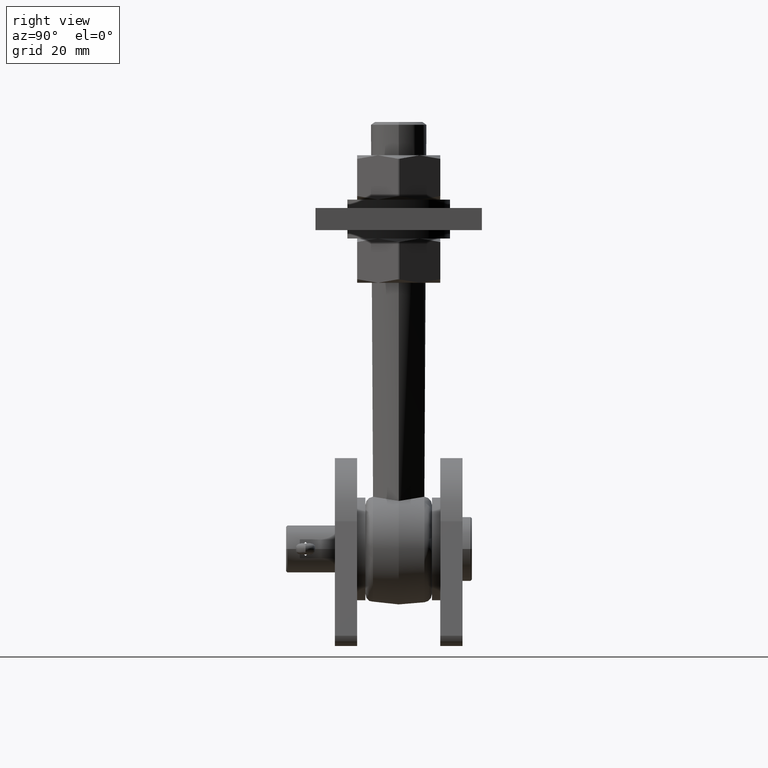
[diagram: clean part render]
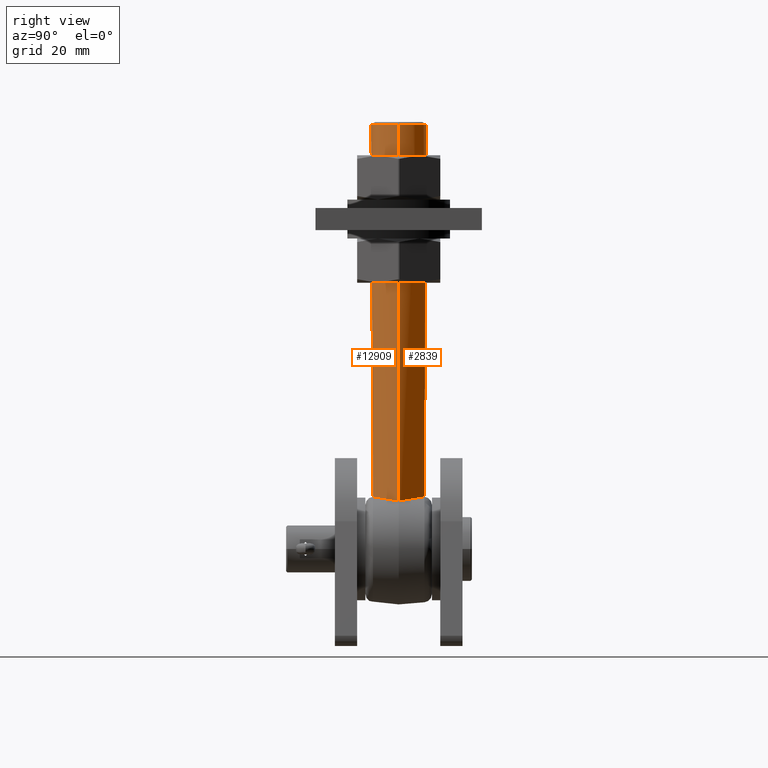
[diagram: same view with one multi-face feature highlighted, each face labeled with its STEP entity id]
A machine part, right view. The highlighted faces form ONE feature: a constant-radius fillet chain: 2 tangent blend faces with common blend radius 10 mm. The faces share edges in the B-rep.
Their STEP definitions:
[1] entity #12909 (Cylinder):
#64 = CARTESIAN_POINT ( 'NONE',  ( 9.700726272622443247, -2.478403115903502929, 17.25393994698888278 ) ) ;
#154 = B_SPLINE_CURVE_WITH_KNOTS ( 'NONE', 3,
 ( #6675, #6741, #12072, #16276, #8184, #9469, #6560, #3910, #1194, #8122, #2683, #5321, #17611, #64, #16210, #7962, #8065, #16102 ),
 .UNSPECIFIED., .F., .F.,
 ( 4, 2, 2, 2, 2, 2, 2, 2, 4 ),
 ( 0.01968676549610584928, 0.02117278003553451846, 0.02191578730524885651, 0.02265879457496319457, 0.02563082365382054681, 0.02711683819324921946, 0.02860285273267789558, 0.03008886727210657169, 0.03157488181153524781 ),
 .UNSPECIFIED. ) ;
#275 = ORIENTED_EDGE ( 'NONE', *, *, #14549, .T. ) ;
#296 = EDGE_CURVE ( 'NONE', #1716, #11074, #5119, .T. ) ;
#801 = CARTESIAN_POINT ( 'NONE',  ( 3.502622918625013071, -9.372099181886746067, 18.89955422112597816 ) ) ;
#916 = CARTESIAN_POINT ( 'NONE',  ( -4.692284897813942202, -8.844184067530791893, 18.68765766559088348 ) ) ;
#919 = CARTESIAN_POINT ( 'NONE',  ( -10.00000000000000000, 1.224646799147353059E-15, -20.00199999999999179 ) ) ;
#1128 = CARTESIAN_POINT ( 'NONE',  ( -7.045800562530937228, -7.112870045709465572, 18.08634345397620535 ) ) ;
#1194 = CARTESIAN_POINT ( 'NONE',  ( 7.729806215744074116, -6.420573703480572547, 17.87370296023746263 ) ) ;
#1308 = CARTESIAN_POINT ( 'NONE',  ( 10.00000000000000000, 0.000000000000000000, 153.0000000000000284 ) ) ;
#1350 = EDGE_CURVE ( 'NONE', #14545, #11074, #7003, .T. ) ;
#1359 = EDGE_LOOP ( 'NONE', ( #6847, #14521, #7697, #275, #9425, #11678 ) ) ;
#1574 = CARTESIAN_POINT ( 'NONE',  ( -10.00000000000000000, 1.224646799147353059E-15, 153.0000000000000284 ) ) ;
#1716 = VERTEX_POINT ( 'NONE', #14229 ) ;
#1943 = CARTESIAN_POINT ( 'NONE',  ( 0.6525917145658880480, -9.984010149917958543, 19.15964042647132359 ) ) ;
#2065 = CARTESIAN_POINT ( 'NONE',  ( 1.301650642571815952, -9.920284281424462947, 19.13183247685588739 ) ) ;
#2195 = CARTESIAN_POINT ( 'NONE',  ( 10.00000000000000000, 2.075554018110587845E-15, 17.32050807568877460 ) ) ;
#2232 = DIRECTION ( 'NONE',  ( 0.000000000000000000, 0.000000000000000000, 1.000000000000000000 ) ) ;
#2683 = CARTESIAN_POINT ( 'NONE',  ( 8.803824609794070000, -4.767868367503244720, 17.51587346503771059 ) ) ;
#3449 = CARTESIAN_POINT ( 'NONE',  ( 2.572198770621717312, -9.668980321438491288, 19.02370105461100991 ) ) ;
#3507 = CYLINDRICAL_SURFACE ( 'NONE', #13330, 10.00000000000000000 ) ;
#3612 = CARTESIAN_POINT ( 'NONE',  ( -10.00000000000000000, 1.734723475976807094E-15, 17.32050807568877104 ) ) ;
#3896 = EDGE_CURVE ( 'NONE', #1716, #12904, #5313, .T. ) ;
#3910 = CARTESIAN_POINT ( 'NONE',  ( 7.075240492070314247, -7.134293102675835385, 18.08670936083950664 ) ) ;
#4974 = DIRECTION ( 'NONE',  ( 0.000000000000000000, 0.000000000000000000, -1.000000000000000000 ) ) ;
#5119 = LINE ( 'NONE', #919, #14058 ) ;
#5141 = CARTESIAN_POINT ( 'NONE',  ( -6.692399033463063418, -7.446575945183504075, 18.19146059561633777 ) ) ;
#5205 = CARTESIAN_POINT ( 'NONE',  ( -8.835764017973177786, -4.785742041345328879, 17.50630661752977346 ) ) ;
#5238 = CARTESIAN_POINT ( 'NONE',  ( 3.801772628969415813, -9.249136439561223000, 18.84967222973677536 ) ) ;
#5313 = B_SPLINE_CURVE_WITH_KNOTS ( 'NONE', 3,
 ( #3612, #14620, #6437, #14551, #5205, #6377, #7777, #1128, #5141, #17275, #15969, #9214, #6551, #916, #14669, #10407 ),
 .UNSPECIFIED., .F., .F.,
 ( 4, 2, 2, 2, 2, 2, 2, 4 ),
 ( 1.978696559023179177E-07, 0.002974008642467257119, 0.005947819415278611868, 0.007434724801684289459, 0.008921630188089965316, 0.009665082881292802811, 0.01040853557449564031, 0.01189544096090132050 ),
 .UNSPECIFIED. ) ;
#5321 = CARTESIAN_POINT ( 'NONE',  ( 9.227620872408923702, -3.884701991779671904, 17.37972913711769252 ) ) ;
#5714 = EDGE_CURVE ( 'NONE', #12904, #13334, #16374, .T. ) ;
#5993 = AXIS2_PLACEMENT_3D ( 'NONE', #10526, #4974, #14494 ) ;
#6035 = CARTESIAN_POINT ( 'NONE',  ( -3.504096372433012085, -9.371493532224862477, 18.89930852872641154 ) ) ;
#6098 = CARTESIAN_POINT ( 'NONE',  ( -3.197067218626133300, -9.480775712499411867, 18.94463972757847614 ) ) ;
#6377 = CARTESIAN_POINT ( 'NONE',  ( -8.006259533125513528, -6.011931591022930732, 17.78186608727027362 ) ) ;
#6424 = DIRECTION ( 'NONE',  ( 0.000000000000000000, 0.000000000000000000, 1.000000000000000000 ) ) ;
#6437 = CARTESIAN_POINT ( 'NONE',  ( -9.852736078693592248, -1.982192769247932196, 17.21712183372639515 ) ) ;
#6488 = CARTESIAN_POINT ( 'NONE',  ( -3.801772628969475765, -9.249136439561192802, 18.84967222973677536 ) ) ;
#6551 = CARTESIAN_POINT ( 'NONE',  ( -5.320119621291354406, -8.470868288481721464, 18.54735235998217036 ) ) ;
#6560 = CARTESIAN_POINT ( 'NONE',  ( 6.127184449269864608, -7.906796671572849711, 18.34595992967986078 ) ) ;
#6675 = CARTESIAN_POINT ( 'NONE',  ( 3.801772628969415813, -9.249136439561223000, 18.84967222973677536 ) ) ;
#6741 = CARTESIAN_POINT ( 'NONE',  ( 4.258219608713637250, -9.061518098594270043, 18.77356156164681877 ) ) ;
#6847 = ORIENTED_EDGE ( 'NONE', *, *, #296, .F. ) ;
#7003 = CIRCLE ( 'NONE', #5993, 10.00000000000000000 ) ;
#7371 = CARTESIAN_POINT ( 'NONE',  ( -1.305637091835909924, -9.935490679198418107, 19.13813554953748763 ) ) ;
#7697 = ORIENTED_EDGE ( 'NONE', *, *, #5714, .T. ) ;
#7777 = CARTESIAN_POINT ( 'NONE',  ( -7.702376216122692298, -6.396063357989797638, 17.88168437975857472 ) ) ;
#7962 = CARTESIAN_POINT ( 'NONE',  ( 9.962557638154743600, -0.9981657043231834114, 17.24618839359191824 ) ) ;
#8065 = CARTESIAN_POINT ( 'NONE',  ( 10.00000000000000355, -0.5010202651647159833, 17.27229737819505573 ) ) ;
#8122 = CARTESIAN_POINT ( 'NONE',  ( 8.559159591582949034, -5.194632305515880510, 17.59819410724466948 ) ) ;
#8173 = CARTESIAN_POINT ( 'NONE',  ( 3.801772628969415813, -9.249136439561223000, 18.84967222973677536 ) ) ;
#8184 = CARTESIAN_POINT ( 'NONE',  ( 5.529375679488065742, -8.335819684704102173, 18.49770452898005857 ) ) ;
#8863 = CARTESIAN_POINT ( 'NONE',  ( 0.3224584886936545658, -10.00017178786474403, 19.16674197945221181 ) ) ;
#9214 = CARTESIAN_POINT ( 'NONE',  ( -5.525007713522617436, -8.338710801018329732, 18.49875751392745471 ) ) ;
#9265 = DIRECTION ( 'NONE',  ( 1.000000000000000000, 0.000000000000000000, 0.000000000000000000 ) ) ;
#9425 = ORIENTED_EDGE ( 'NONE', *, *, #14249, .T. ) ;
#9469 = CARTESIAN_POINT ( 'NONE',  ( 5.930492218390911674, -8.055380020111982731, 18.39758699810101561 ) ) ;
#9894 = DIRECTION ( 'NONE',  ( 0.000000000000000000, 0.000000000000000000, 1.000000000000000000 ) ) ;
#10002 = LINE ( 'NONE', #15265, #16371 ) ;
#10229 = CARTESIAN_POINT ( 'NONE',  ( -2.257753447911333478, -9.747164468780066926, 19.05710368172337610 ) ) ;
#10407 = CARTESIAN_POINT ( 'NONE',  ( -3.801772628969475765, -9.249136439561192802, 18.84967222973677536 ) ) ;
#10526 = CARTESIAN_POINT ( 'NONE',  ( 0.000000000000000000, 0.000000000000000000, 153.0000000000000284 ) ) ;
#11074 = VERTEX_POINT ( 'NONE', #1574 ) ;
#11613 = CARTESIAN_POINT ( 'NONE',  ( 1.622686173494845452, -9.872777217974913810, 19.11115161014278030 ) ) ;
#11678 = ORIENTED_EDGE ( 'NONE', *, *, #1350, .T. ) ;
#12072 = CARTESIAN_POINT ( 'NONE',  ( 4.695488970775047122, -8.842532543594392891, 18.68701041935945284 ) ) ;
#12711 = CARTESIAN_POINT ( 'NONE',  ( 2.257960364723471169, -9.747125494460080475, 19.05708688102138382 ) ) ;
#12904 = VERTEX_POINT ( 'NONE', #6488 ) ;
#12909 = ADVANCED_FACE ( 'NONE', ( #16379 ), #3507, .T. ) ;
#13266 = VERTEX_POINT ( 'NONE', #2195 ) ;
#13330 = AXIS2_PLACEMENT_3D ( 'NONE', #15904, #6424, #9265 ) ;
#13334 = VERTEX_POINT ( 'NONE', #5238 ) ;
#14058 = VECTOR ( 'NONE', #2232, 1000.000000000000000 ) ;
#14229 = CARTESIAN_POINT ( 'NONE',  ( -10.00000000000000000, 1.734723475976807094E-15, 17.32050807568877104 ) ) ;
#14249 = EDGE_CURVE ( 'NONE', #13266, #14545, #10002, .T. ) ;
#14262 = CARTESIAN_POINT ( 'NONE',  ( -3.801772628969475765, -9.249136439561192802, 18.84967222973677536 ) ) ;
#14494 = DIRECTION ( 'NONE',  ( 1.000000000000000000, 0.000000000000000000, 0.000000000000000000 ) ) ;
#14521 = ORIENTED_EDGE ( 'NONE', *, *, #3896, .T. ) ;
#14545 = VERTEX_POINT ( 'NONE', #1308 ) ;
#14549 = EDGE_CURVE ( 'NONE', #13334, #13266, #154, .T. ) ;
#14551 = CARTESIAN_POINT ( 'NONE',  ( -9.263001468294765672, -3.899012722371921313, 17.36062736836075970 ) ) ;
#14620 = CARTESIAN_POINT ( 'NONE',  ( -10.00000000000000178, -1.001941193546410869, 17.22409623938773748 ) ) ;
#14669 = CARTESIAN_POINT ( 'NONE',  ( -4.256243677889796295, -9.062330286820909464, 18.77389104003483311 ) ) ;
#15265 = CARTESIAN_POINT ( 'NONE',  ( 10.00000000000000000, 0.000000000000000000, -20.00199999999999179 ) ) ;
#15503 = CARTESIAN_POINT ( 'NONE',  ( -2.572578611729531506, -9.668928906430343417, 19.02367726169498496 ) ) ;
#15563 = CARTESIAN_POINT ( 'NONE',  ( -0.6607694114864383073, -9.999652235942477319, 19.16651420490842384 ) ) ;
#15904 = CARTESIAN_POINT ( 'NONE',  ( 0.000000000000000000, 0.000000000000000000, -20.00199999999999179 ) ) ;
#15969 = CARTESIAN_POINT ( 'NONE',  ( -5.926016863231069465, -8.058668140220513365, 18.39874046819687692 ) ) ;
#16102 = CARTESIAN_POINT ( 'NONE',  ( 10.00000000000000000, 2.075554018110587845E-15, 17.32050807568877460 ) ) ;
#16210 = CARTESIAN_POINT ( 'NONE',  ( 9.813741887247465101, -1.984782012546199903, 17.23675594816383949 ) ) ;
#16276 = CARTESIAN_POINT ( 'NONE',  ( 5.324305173422160919, -8.468250943085532612, 18.54638212526291952 ) ) ;
#16371 = VECTOR ( 'NONE', #9894, 1000.000000000000000 ) ;
#16374 = B_SPLINE_CURVE_WITH_KNOTS ( 'NONE', 3,
 ( #14262, #6035, #6098, #15503, #10229, #7371, #15563, #8863, #1943, #2065, #11613, #12711, #3449, #17582, #801, #8173 ),
 .UNSPECIFIED., .F., .F.,
 ( 4, 2, 2, 2, 2, 2, 2, 4 ),
 ( 0.01189544096090132050, 0.01286935652780188746, 0.01384327209470245269, 0.01579110322850358489, 0.01676501879540415185, 0.01773893436230471882, 0.01871284992920528231, 0.01968676549610584928 ),
 .UNSPECIFIED. ) ;
#16379 = FACE_OUTER_BOUND ( 'NONE', #1359, .T. ) ;
#17275 = CARTESIAN_POINT ( 'NONE',  ( -6.122836833864119477, -7.910170266087673596, 18.34711762492279519 ) ) ;
#17582 = CARTESIAN_POINT ( 'NONE',  ( 3.193897227825141627, -9.481793473285710760, 18.94506507596495126 ) ) ;
#17611 = CARTESIAN_POINT ( 'NONE',  ( 9.407475391597699854, -3.427240723636322262, 17.32564751502166089 ) ) ;
[2] entity #2839 (Cylinder):
#89 = EDGE_CURVE ( 'NONE', #17133, #1716, #1468, .T. ) ;
#134 = AXIS2_PLACEMENT_3D ( 'NONE', #14656, #10621, #9201 ) ;
#296 = EDGE_CURVE ( 'NONE', #1716, #11074, #5119, .T. ) ;
#434 = CARTESIAN_POINT ( 'NONE',  ( -4.258219608713569748, 9.061518098594298465, 18.77356156164682588 ) ) ;
#489 = CARTESIAN_POINT ( 'NONE',  ( -10.00000000000000000, 1.734723475976807094E-15, 17.32050807568877104 ) ) ;
#551 = CARTESIAN_POINT ( 'NONE',  ( -5.529375679488012452, 8.335819684704135923, 18.49770452898006567 ) ) ;
#919 = CARTESIAN_POINT ( 'NONE',  ( -10.00000000000000000, 1.224646799147353059E-15, -20.00199999999999179 ) ) ;
#950 = VERTEX_POINT ( 'NONE', #12092 ) ;
#1080 = CARTESIAN_POINT ( 'NONE',  ( 3.801772628969339873, 9.249136439561238987, 18.84967222973678247 ) ) ;
#1096 = CARTESIAN_POINT ( 'NONE',  ( 3.801772628969339873, 9.249136439561238987, 18.84967222973678247 ) ) ;
#1150 = CARTESIAN_POINT ( 'NONE',  ( 5.320119621291254042, 8.470868288481787189, 18.54735235998219878 ) ) ;
#1308 = CARTESIAN_POINT ( 'NONE',  ( 10.00000000000000000, 0.000000000000000000, 153.0000000000000284 ) ) ;
#1426 = EDGE_CURVE ( 'NONE', #950, #17133, #16218, .T. ) ;
#1468 = B_SPLINE_CURVE_WITH_KNOTS ( 'NONE', 3,
 ( #3257, #434, #3008, #13960, #551, #12524, #1768, #11280, #11408, #15259, #4332, #13845, #5680, #15203, #7058, #8433, #3147, #489 ),
 .UNSPECIFIED., .F., .F.,
 ( 4, 2, 2, 2, 2, 2, 2, 2, 4 ),
 ( 0.01968676549610576948, 0.02117278003553445601, 0.02191578730524879753, 0.02265879457496314253, 0.02563082365382050865, 0.02711683819324919170, 0.02860285273267787476, 0.03008886727210655782, 0.03157488181153524087 ),
 .UNSPECIFIED. ) ;
#1528 = CARTESIAN_POINT ( 'NONE',  ( 2.572578611729431586, 9.668928906430366510, 19.02367726169499562 ) ) ;
#1574 = CARTESIAN_POINT ( 'NONE',  ( -10.00000000000000000, 1.224646799147353059E-15, 153.0000000000000284 ) ) ;
#1626 = B_SPLINE_CURVE_WITH_KNOTS ( 'NONE', 3,
 ( #8027, #15937, #9173, #12078, #11906, #5277, #2418, #14639, #6460, #17359, #16001, #7855, #1150, #16056, #9239, #1096 ),
 .UNSPECIFIED., .F., .F.,
 ( 4, 2, 2, 2, 2, 2, 2, 4 ),
 ( 1.978696559026063060E-07, 0.002974008642467292247, 0.005947819415278681257, 0.007434724801684375328, 0.008921630188090071134, 0.009665082881292917302, 0.01040853557449576347, 0.01189544096090145581 ),
 .UNSPECIFIED. ) ;
#1670 = ORIENTED_EDGE ( 'NONE', *, *, #1426, .T. ) ;
#1716 = VERTEX_POINT ( 'NONE', #14229 ) ;
#1749 = ORIENTED_EDGE ( 'NONE', *, *, #296, .T. ) ;
#1768 = CARTESIAN_POINT ( 'NONE',  ( -6.127184449269816646, 7.906796671572889679, 18.34595992967987144 ) ) ;
#2141 = ORIENTED_EDGE ( 'NONE', *, *, #89, .T. ) ;
#2195 = CARTESIAN_POINT ( 'NONE',  ( 10.00000000000000000, 2.075554018110587845E-15, 17.32050807568877460 ) ) ;
#2232 = DIRECTION ( 'NONE',  ( 0.000000000000000000, 0.000000000000000000, 1.000000000000000000 ) ) ;
#2418 = CARTESIAN_POINT ( 'NONE',  ( 7.702376216122639008, 6.396063357989863363, 17.88168437975859248 ) ) ;
#2441 = CARTESIAN_POINT ( 'NONE',  ( -3.801772628969339873, 9.249136439561237211, 18.84967222973678247 ) ) ;
#2772 = CYLINDRICAL_SURFACE ( 'NONE', #134, 10.00000000000000000 ) ;
#2839 = ADVANCED_FACE ( 'NONE', ( #6400 ), #2772, .T. ) ;
#3008 = CARTESIAN_POINT ( 'NONE',  ( -4.695488970774985837, 8.842532543594423089, 18.68701041935946350 ) ) ;
#3147 = CARTESIAN_POINT ( 'NONE',  ( -10.00000000000000000, 0.5010202651647210903, 17.27229737819505928 ) ) ;
#3257 = CARTESIAN_POINT ( 'NONE',  ( -3.801772628969339873, 9.249136439561237211, 18.84967222973678247 ) ) ;
#3846 = CARTESIAN_POINT ( 'NONE',  ( -1.622686173494832351, 9.872777217974915587, 19.11115161014278385 ) ) ;
#3958 = DIRECTION ( 'NONE',  ( 0.000000000000000000, 0.000000000000000000, -1.000000000000000000 ) ) ;
#4039 = ORIENTED_EDGE ( 'NONE', *, *, #16336, .T. ) ;
#4068 = EDGE_LOOP ( 'NONE', ( #2141, #1749, #9128, #6322, #4039, #1670 ) ) ;
#4250 = CARTESIAN_POINT ( 'NONE',  ( 3.197067218626016061, 9.480775712499449170, 18.94463972757849390 ) ) ;
#4332 = CARTESIAN_POINT ( 'NONE',  ( -8.803824609794055789, 4.767868367503273141, 17.51587346503771769 ) ) ;
#5119 = LINE ( 'NONE', #919, #14058 ) ;
#5277 = CARTESIAN_POINT ( 'NONE',  ( 8.006259533125469119, 6.011931591022992016, 17.78186608727029849 ) ) ;
#5680 = CARTESIAN_POINT ( 'NONE',  ( -9.407475391597694525, 3.427240723636340913, 17.32564751502166089 ) ) ;
#6322 = ORIENTED_EDGE ( 'NONE', *, *, #14249, .F. ) ;
#6400 = FACE_OUTER_BOUND ( 'NONE', #4068, .T. ) ;
#6460 = CARTESIAN_POINT ( 'NONE',  ( 6.692399033462990587, 7.446575945183567136, 18.19146059561636619 ) ) ;
#6859 = CARTESIAN_POINT ( 'NONE',  ( -1.301650642571811511, 9.920284281424462947, 19.13183247685588739 ) ) ;
#7058 = CARTESIAN_POINT ( 'NONE',  ( -9.813741887247472206, 1.984782012546209673, 17.23675594816383239 ) ) ;
#7855 = CARTESIAN_POINT ( 'NONE',  ( 5.525007713522522401, 8.338710801018393681, 18.49875751392748668 ) ) ;
#8027 = CARTESIAN_POINT ( 'NONE',  ( 10.00000000000000000, 2.075554018110587845E-15, 17.32050807568877460 ) ) ;
#8433 = CARTESIAN_POINT ( 'NONE',  ( -9.962557638154747153, 0.9981657043231895177, 17.24618839359191469 ) ) ;
#9128 = ORIENTED_EDGE ( 'NONE', *, *, #9829, .T. ) ;
#9173 = CARTESIAN_POINT ( 'NONE',  ( 9.852736078693583366, 1.982192769247956843, 17.21712183372638805 ) ) ;
#9201 = DIRECTION ( 'NONE',  ( 1.000000000000000000, 0.000000000000000000, 0.000000000000000000 ) ) ;
#9239 = CARTESIAN_POINT ( 'NONE',  ( 4.256243677889675503, 9.062330286820969860, 18.77389104003486153 ) ) ;
#9451 = DIRECTION ( 'NONE',  ( 1.000000000000000000, 0.000000000000000000, 0.000000000000000000 ) ) ;
#9829 = EDGE_CURVE ( 'NONE', #11074, #14545, #15517, .T. ) ;
#9894 = DIRECTION ( 'NONE',  ( 0.000000000000000000, 0.000000000000000000, 1.000000000000000000 ) ) ;
#10002 = LINE ( 'NONE', #15265, #16371 ) ;
#10621 = DIRECTION ( 'NONE',  ( 0.000000000000000000, 0.000000000000000000, 1.000000000000000000 ) ) ;
#10748 = CARTESIAN_POINT ( 'NONE',  ( 0.000000000000000000, 0.000000000000000000, 153.0000000000000284 ) ) ;
#10929 = CARTESIAN_POINT ( 'NONE',  ( 2.257753447911241551, 9.747164468780086466, 19.05710368172338676 ) ) ;
#11037 = CARTESIAN_POINT ( 'NONE',  ( -3.801772628969339873, 9.249136439561237211, 18.84967222973678247 ) ) ;
#11074 = VERTEX_POINT ( 'NONE', #1574 ) ;
#11280 = CARTESIAN_POINT ( 'NONE',  ( -7.075240492070283160, 7.134293102675874465, 18.08670936083952796 ) ) ;
#11408 = CARTESIAN_POINT ( 'NONE',  ( -7.729806215744042142, 6.420573703480609851, 17.87370296023746263 ) ) ;
#11906 = CARTESIAN_POINT ( 'NONE',  ( 8.835764017973149365, 4.785742041345381281, 17.50630661752978412 ) ) ;
#12006 = CARTESIAN_POINT ( 'NONE',  ( -3.193897227825086116, 9.481793473285733853, 18.94506507596495837 ) ) ;
#12078 = CARTESIAN_POINT ( 'NONE',  ( 9.263001468294746132, 3.899012722371966166, 17.36062736836076681 ) ) ;
#12092 = CARTESIAN_POINT ( 'NONE',  ( 3.801772628969339873, 9.249136439561238987, 18.84967222973678247 ) ) ;
#12329 = CARTESIAN_POINT ( 'NONE',  ( -0.3224584886936781025, 10.00017178786474226, 19.16674197945221536 ) ) ;
#12447 = CARTESIAN_POINT ( 'NONE',  ( -2.257960364723439195, 9.747125494460092909, 19.05708688102138382 ) ) ;
#12524 = CARTESIAN_POINT ( 'NONE',  ( -5.930492218390861936, 8.055380020112020034, 18.39758699810102982 ) ) ;
#13266 = VERTEX_POINT ( 'NONE', #2195 ) ;
#13364 = CARTESIAN_POINT ( 'NONE',  ( -2.572198770621676012, 9.668980321438501946, 19.02370105461101346 ) ) ;
#13649 = CARTESIAN_POINT ( 'NONE',  ( 3.504096372432888629, 9.371493532224912215, 18.89930852872643285 ) ) ;
#13770 = CARTESIAN_POINT ( 'NONE',  ( 0.6607694114863881252, 9.999652235942477319, 19.16651420490842739 ) ) ;
#13827 = CARTESIAN_POINT ( 'NONE',  ( 1.305637091835842423, 9.935490679198425212, 19.13813554953749119 ) ) ;
#13845 = CARTESIAN_POINT ( 'NONE',  ( -9.227620872408916597, 3.884701991779698993, 17.37972913711769607 ) ) ;
#13960 = CARTESIAN_POINT ( 'NONE',  ( -5.324305173422105852, 8.468250943085569915, 18.54638212526293373 ) ) ;
#14058 = VECTOR ( 'NONE', #2232, 1000.000000000000000 ) ;
#14229 = CARTESIAN_POINT ( 'NONE',  ( -10.00000000000000000, 1.734723475976807094E-15, 17.32050807568877104 ) ) ;
#14249 = EDGE_CURVE ( 'NONE', #13266, #14545, #10002, .T. ) ;
#14545 = VERTEX_POINT ( 'NONE', #1308 ) ;
#14639 = CARTESIAN_POINT ( 'NONE',  ( 7.045800562530874167, 7.112870045709529521, 18.08634345397621601 ) ) ;
#14656 = CARTESIAN_POINT ( 'NONE',  ( 0.000000000000000000, 0.000000000000000000, -20.00199999999999179 ) ) ;
#15005 = CARTESIAN_POINT ( 'NONE',  ( -0.6525917145659012597, 9.984010149917956767, 19.15964042647132359 ) ) ;
#15203 = CARTESIAN_POINT ( 'NONE',  ( -9.700726272622439694, 2.478403115903517584, 17.25393994698889344 ) ) ;
#15259 = CARTESIAN_POINT ( 'NONE',  ( -8.559159591582931270, 5.194632305515913373, 17.59819410724466238 ) ) ;
#15265 = CARTESIAN_POINT ( 'NONE',  ( 10.00000000000000000, 0.000000000000000000, -20.00199999999999179 ) ) ;
#15517 = CIRCLE ( 'NONE', #15902, 10.00000000000000000 ) ;
#15902 = AXIS2_PLACEMENT_3D ( 'NONE', #10748, #3958, #9451 ) ;
#15937 = CARTESIAN_POINT ( 'NONE',  ( 10.00000000000000000, 1.001941193546424858, 17.22409623938774104 ) ) ;
#16001 = CARTESIAN_POINT ( 'NONE',  ( 5.926016863230979759, 8.058668140220577314, 18.39874046819689823 ) ) ;
#16056 = CARTESIAN_POINT ( 'NONE',  ( 4.692284897813827627, 8.844184067530850513, 18.68765766559091546 ) ) ;
#16218 = B_SPLINE_CURVE_WITH_KNOTS ( 'NONE', 3,
 ( #1080, #13649, #4250, #1528, #10929, #13827, #13770, #12329, #15005, #6859, #3846, #12447, #13364, #12006, #16377, #11037 ),
 .UNSPECIFIED., .F., .F.,
 ( 4, 2, 2, 2, 2, 2, 2, 4 ),
 ( 0.01189544096090145581, 0.01286935652780199502, 0.01384327209470253596, 0.01579110322850361264, 0.01676501879540415185, 0.01773893436230469106, 0.01871284992920523027, 0.01968676549610576948 ),
 .UNSPECIFIED. ) ;
#16336 = EDGE_CURVE ( 'NONE', #13266, #950, #1626, .T. ) ;
#16371 = VECTOR ( 'NONE', #9894, 1000.000000000000000 ) ;
#16377 = CARTESIAN_POINT ( 'NONE',  ( -3.502622918624950454, 9.372099181886765606, 18.89955422112598882 ) ) ;
#17133 = VERTEX_POINT ( 'NONE', #2441 ) ;
#17359 = CARTESIAN_POINT ( 'NONE',  ( 6.122836833864033323, 7.910170266087739321, 18.34711762492281295 ) ) ;